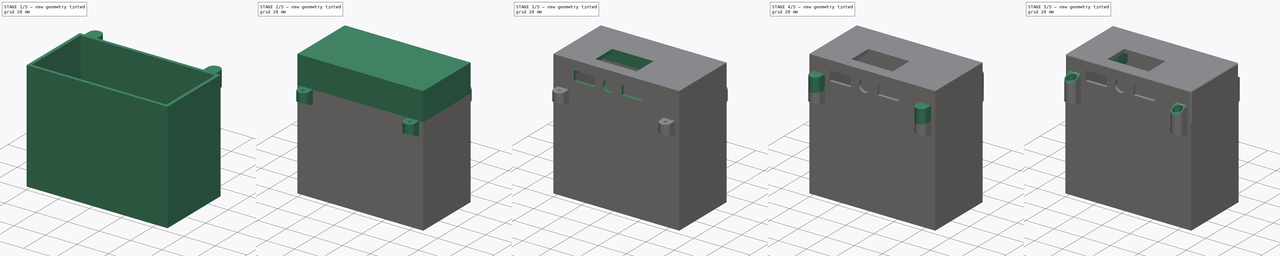
[diagram: build sequence overview — one tinted view per stage of 5, left to right]
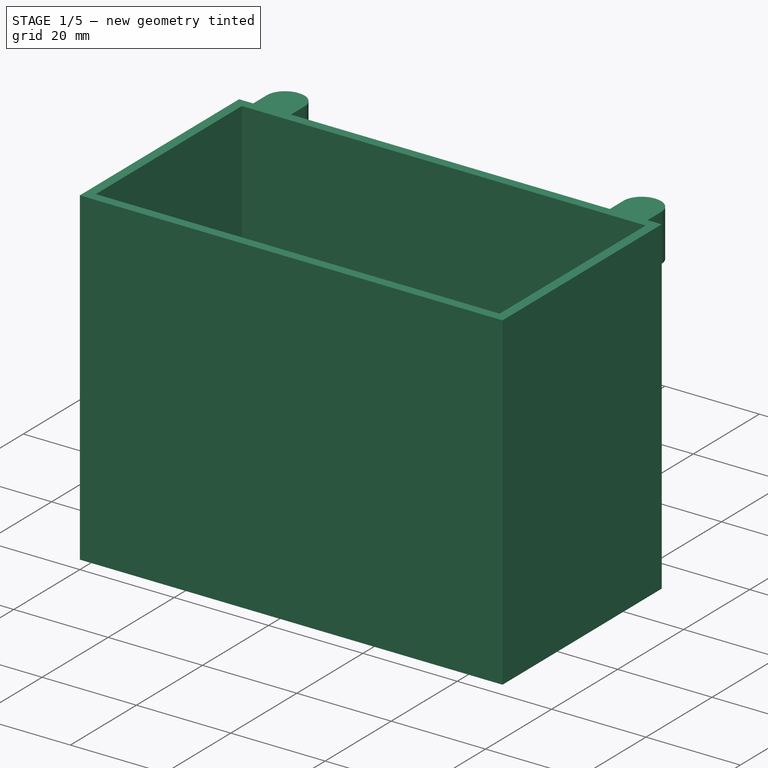
[diagram: stage 1 of 5 — iso view after this stage's code; geometry added in this stage tinted green]
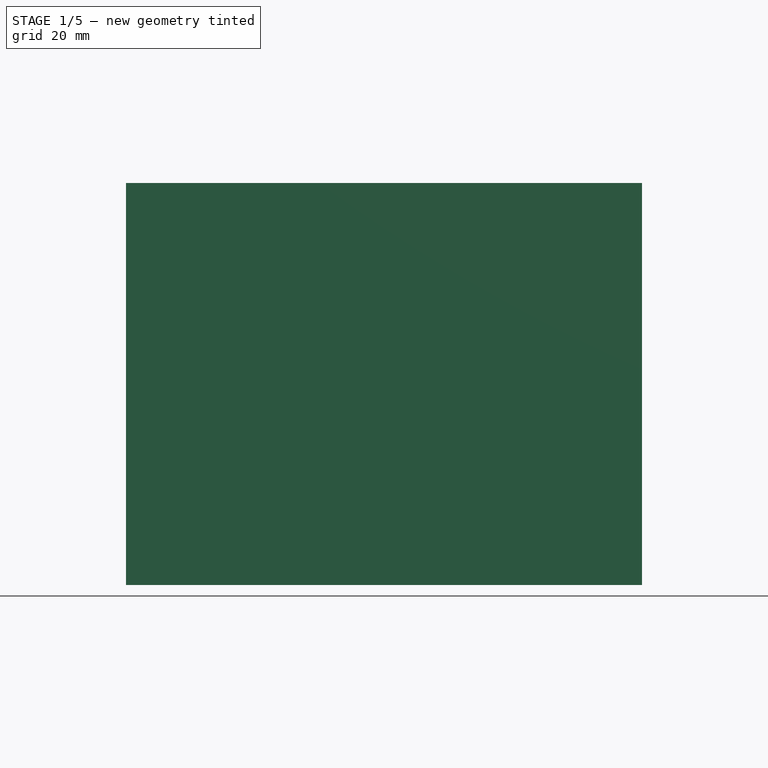
[diagram: stage 1 of 5 — front view after this stage's code; geometry added in this stage tinted green]
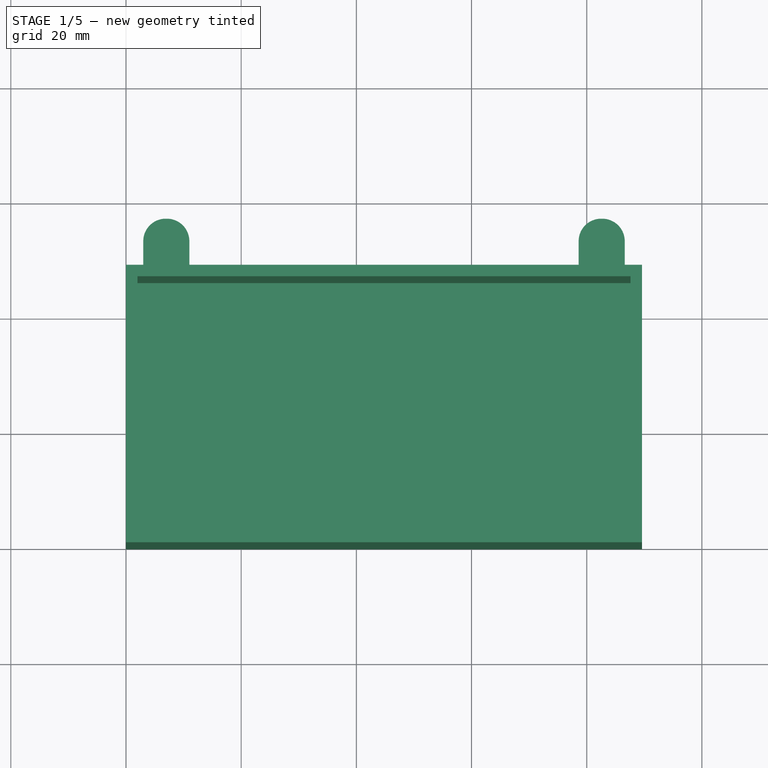
[diagram: stage 1 of 5 — top view after this stage's code; geometry added in this stage tinted green]
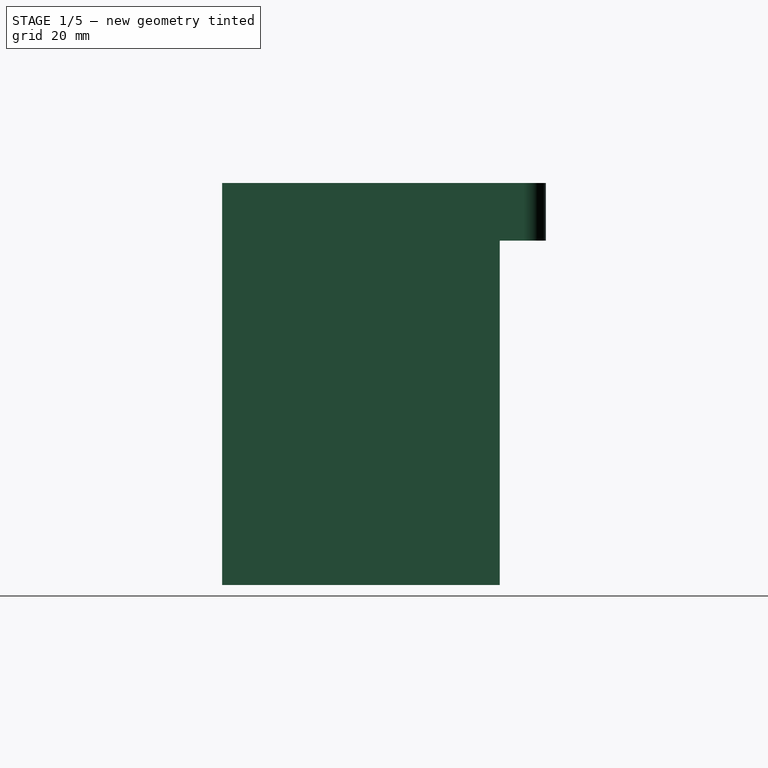
[diagram: stage 1 of 5 — right view after this stage's code; geometry added in this stage tinted green]
FCSTD DOCUMENT  (FreeCAD 0.19R24276 (Git))
Label: powerBank
License: All rights reserved
LicenseURL: http://en.wikipedia.org/wiki/All_rights_reserved
objects: Sketcher::SketchObject×19, PartDesign::Pocket×11, PartDesign::Pad×8, PartDesign::Fillet×6, PartDesign::Body×2
note: 71 computed .brp shape members not serialized (recipe doc carries the construction recipe); baked Part::Feature solids carry a one-line shape summary decoded from their .brp

FEATURE [Sketcher::SketchObject] Sketch013
  FullyConstrained = true
  MapMode = 5
  Support = -> [XY_Plane001]
  sketch-geometry (4):
    g0: LineSegment StartX=0 StartY=48.2 StartZ=0 EndX=89.6 EndY=48.2 EndZ=0
    g1: LineSegment StartX=89.6 StartY=48.2 StartZ=0 EndX=89.6 EndY=0 EndZ=0
    g2: LineSegment StartX=89.6 StartY=0 StartZ=0 EndX=0 EndY=0 EndZ=0
    g3: LineSegment StartX=0 StartY=0 StartZ=0 EndX=0 EndY=48.2 EndZ=0
  constraints (12):
    c: Coincident(g0,g1)
    c: Coincident(g1,g2)
    c: Coincident(g2,g3)
    c: Coincident(g3,g0)
    c: Horizontal(g0)
    c: Horizontal(g2)
    c: Vertical(g1)
    c: Vertical(g3)
    c: DistanceX(g2,g2) = 89.6
    c: DistanceY(g1,g1) = 48.2
    c: DistanceX(g2) = 0
    c: DistanceY(g2) = 0
FEATURE [PartDesign::Pad] Pad005
  Direction = (1,1,1)
  Length = 69.8
  Length2 = 100
  Profile = -> Sketch013
  Reversed = true
  Type = 0
  expr: Length = 67.8 + 2
FEATURE [Sketcher::SketchObject] Sketch014
  ExternalGeometry = -> [Pad005]
  FullyConstrained = true
  MapMode = 5
  Support = -> [Pad005]
  sketch-geometry (4):
    g0: LineSegment StartX=87.6 StartY=46.2 StartZ=0 EndX=2 EndY=46.2 EndZ=0
    g1: LineSegment StartX=2 StartY=46.2 StartZ=0 EndX=2 EndY=2 EndZ=0
    g2: LineSegment StartX=2 StartY=2 StartZ=0 EndX=87.6 EndY=2 EndZ=0
    g3: LineSegment StartX=87.6 StartY=2 StartZ=0 EndX=87.6 EndY=46.2 EndZ=0
  constraints (12):
    c: Coincident(g0,g1)
    c: Coincident(g1,g2)
    c: Coincident(g2,g3)
    c: Coincident(g3,g0)
    c: Horizontal(g0)
    c: Horizontal(g2)
    c: Vertical(g1)
    c: Vertical(g3)
    c: DistanceX(g-3,g0) = 2
    c: DistanceY(g0,g-3) = 2
    c: DistanceY(g-4,g1) = 2
    c: DistanceX(g2,g-5) = 2
FEATURE [PartDesign::Pocket] Pocket008
  BaseFeature = -> Pad005
  Length = 67.8
  Length2 = 100
  Profile = -> Sketch014
  Type = 0
FEATURE [Sketcher::SketchObject] Sketch025
  ExternalGeometry = -> [Pocket008]
  FullyConstrained = true
  MapMode = 5
  Placement = pos=(0,48.2,0) rot=(0,0.707107,0.707107;3.14159rad)
  Support = -> [Pocket008]
  sketch-geometry (8):
    g0: LineSegment StartX=-86.6 StartY=0 StartZ=0 EndX=-78.6 EndY=0 EndZ=0
    g1: LineSegment StartX=-78.6 StartY=0 StartZ=0 EndX=-78.6 EndY=-10 EndZ=0
    g2: LineSegment StartX=-78.6 StartY=-10 StartZ=0 EndX=-86.6 EndY=-10 EndZ=0
    g3: LineSegment StartX=-86.6 StartY=-10 StartZ=0 EndX=-86.6 EndY=0 EndZ=0
    g4: LineSegment StartX=-11 StartY=0 StartZ=0 EndX=-3 EndY=0 EndZ=0
    g5: LineSegment StartX=-3 StartY=0 StartZ=0 EndX=-3 EndY=-10 EndZ=0
    g6: LineSegment StartX=-3 StartY=-10 StartZ=0 EndX=-11 EndY=-10 EndZ=0
    g7: LineSegment StartX=-11 StartY=-10 StartZ=0 EndX=-11 EndY=0 EndZ=0
  constraints (24):
    c: Coincident(g0,g1)
    c: Coincident(g1,g2)
    c: Coincident(g2,g3)
    c: Coincident(g3,g0)
    c: Horizontal(g0)
    c: Horizontal(g2)
    c: Vertical(g1)
    c: Vertical(g3)
    c: Coincident(g4,g5)
    c: Coincident(g5,g6)
    c: Coincident(g6,g7)
    c: Coincident(g7,g4)
    c: Horizontal(g4)
    c: Horizontal(g6)
    c: Vertical(g5)
    c: Vertical(g7)
    c: DistanceX(g0,g0) = 8
    c: DistanceY(g1,g1) = 10
    c: Equal(g0,g4)
    c: Equal(g1,g7)
    c: DistanceY(g0,g-4) = 0
    c: DistanceY(g4,g-3) = 0
    c: DistanceX(g-4,g0) = 3
    c: DistanceX(g4,g-3) = 3
FEATURE [PartDesign::Pad] Pad009
  BaseFeature = -> Pocket008
  Direction = (1,1,1)
  Length = 8
  Length2 = 100
  Profile = -> Sketch025
  Type = 0
FEATURE [PartDesign::Fillet] Fillet004
  Base = -> Pad009 [Edge24,Edge28]
  BaseFeature = -> Pad009
  Radius = 3.9
  SupportTransform = false
FEATURE [PartDesign::Fillet] Fillet005
  Base = -> Fillet004 [Edge42,Edge38]
  BaseFeature = -> Fillet004
  Radius = 3.9
  SupportTransform = false
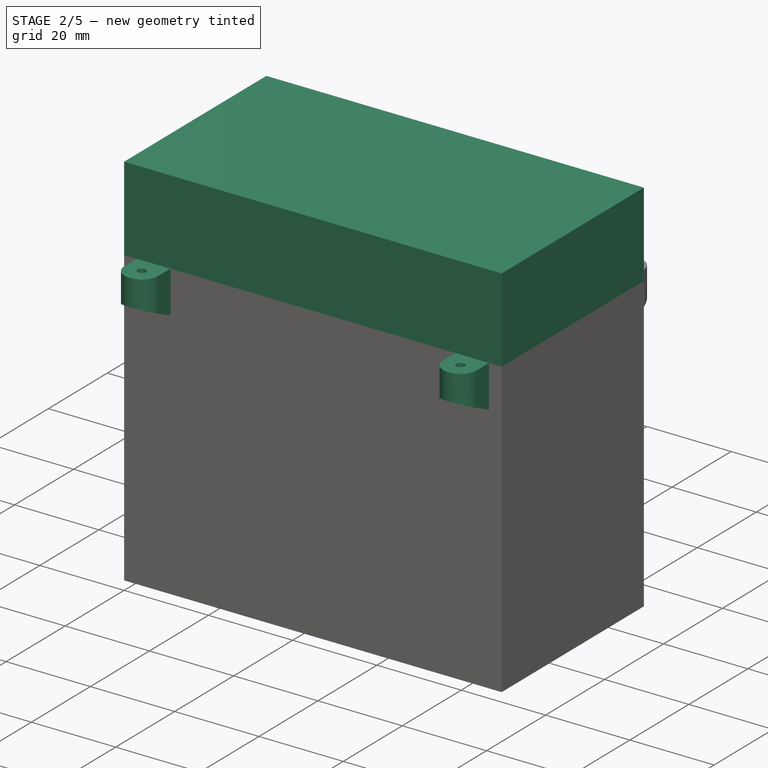
[diagram: stage 2 of 5 — iso view after this stage's code; geometry added in this stage tinted green]
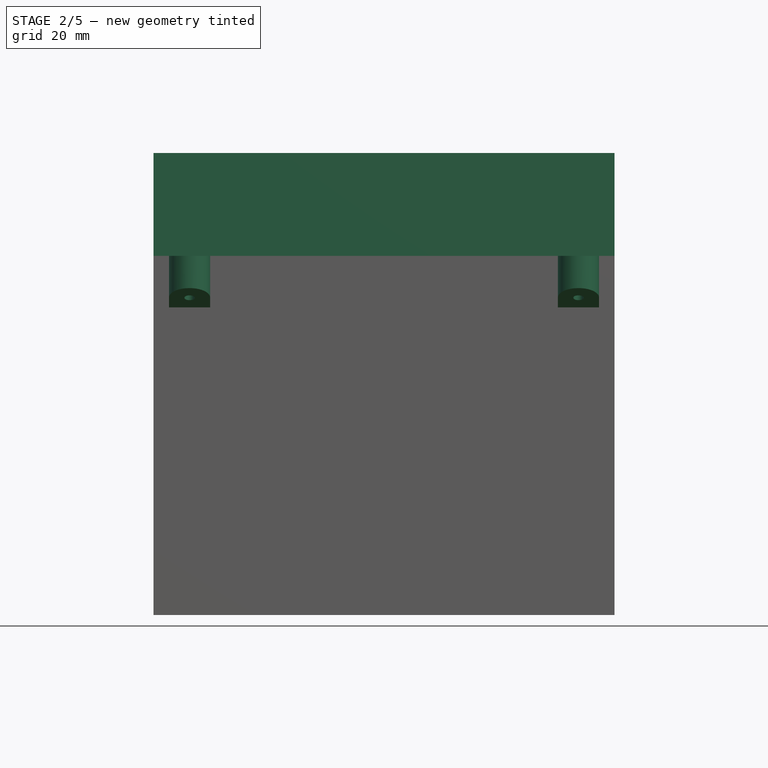
[diagram: stage 2 of 5 — front view after this stage's code; geometry added in this stage tinted green]
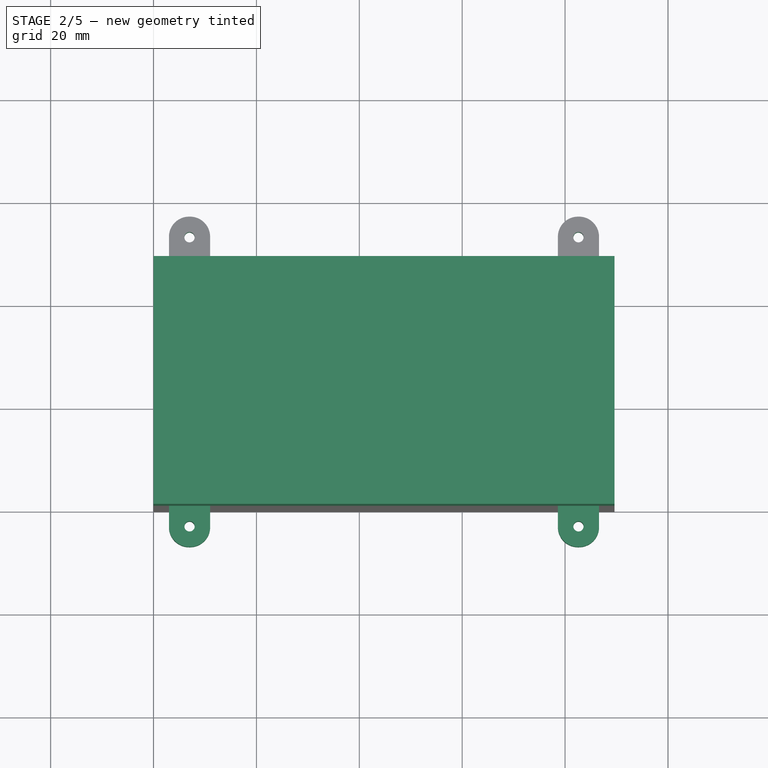
[diagram: stage 2 of 5 — top view after this stage's code; geometry added in this stage tinted green]
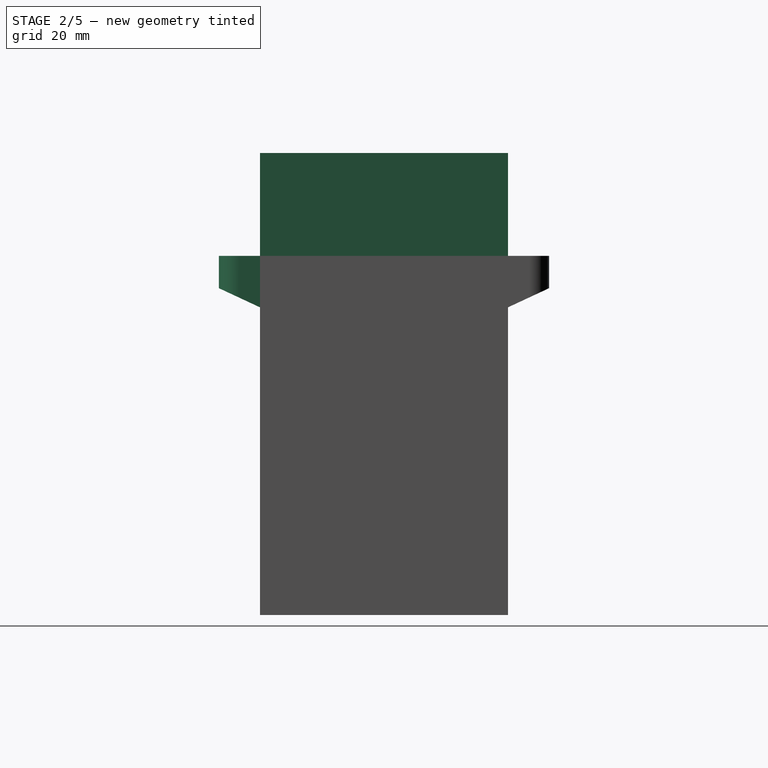
[diagram: stage 2 of 5 — right view after this stage's code; geometry added in this stage tinted green]
FEATURE [Sketcher::SketchObject] Sketch
  FullyConstrained = true
  MapMode = 5
  Support = -> [XY_Plane]
  expr: Constraints[9] = 43.4 + 2 + 2 + 0.4 + 0.4
  expr: Constraints[10] = 84.8 + 2 + 2 + 0.4 + 0.4
  sketch-geometry (4):
    g0: LineSegment StartX=0 StartY=0 StartZ=0 EndX=89.6 EndY=0 EndZ=0
    g1: LineSegment StartX=89.6 StartY=0 StartZ=0 EndX=89.6 EndY=48.2 EndZ=0
    g2: LineSegment StartX=89.6 StartY=48.2 StartZ=0 EndX=0 EndY=48.2 EndZ=0
    g3: LineSegment StartX=0 StartY=48.2 StartZ=0 EndX=0 EndY=0 EndZ=0
  constraints (11):
    c: Coincident(g0,g1)
    c: Coincident(g1,g2)
    c: Coincident(g2,g3)
    c: Coincident(g3,g0)
    c: Horizontal(g0)
    c: Horizontal(g2)
    c: Vertical(g1)
    c: Vertical(g3)
    c: Coincident(g0,g-1)
    c: DistanceY(g1,g1) = 48.2
    c: DistanceX(g2,g2) = 89.6
FEATURE [PartDesign::Pad] Pad  label="base"
  Direction = (1,1,1)
  Length = 20
  Length2 = 100
  Profile = -> Sketch
  Type = 0
FEATURE [Sketcher::SketchObject] Sketch026
  ExternalGeometry = -> [Fillet005]
  FullyConstrained = true
  MapMode = 5
  Placement = pos=(0,0,0) rot=(1,0,0;1.5708rad)
  Support = -> [Fillet005]
  sketch-geometry (8):
    g0: LineSegment StartX=3 StartY=0 StartZ=0 EndX=11 EndY=0 EndZ=0
    g1: LineSegment StartX=11 StartY=0 StartZ=0 EndX=11 EndY=-10 EndZ=0
    g2: LineSegment StartX=11 StartY=-10 StartZ=0 EndX=3 EndY=-10 EndZ=0
    g3: LineSegment StartX=3 StartY=-10 StartZ=0 EndX=3 EndY=0 EndZ=0
    g4: LineSegment StartX=78.6 StartY=0 StartZ=0 EndX=86.6 EndY=0 EndZ=0
    g5: LineSegment StartX=86.6 StartY=0 StartZ=0 EndX=86.6 EndY=-10 EndZ=0
    g6: LineSegment StartX=86.6 StartY=-10 StartZ=0 EndX=78.6 EndY=-10 EndZ=0
    g7: LineSegment StartX=78.6 StartY=-10 StartZ=0 EndX=78.6 EndY=0 EndZ=0
  constraints (24):
    c: Coincident(g0,g1)
    c: Coincident(g1,g2)
    c: Coincident(g2,g3)
    c: Coincident(g3,g0)
    c: Horizontal(g0)
    c: Horizontal(g2)
    c: Vertical(g1)
    c: Vertical(g3)
    c: Coincident(g4,g5)
    c: Coincident(g5,g6)
    c: Coincident(g6,g7)
    c: Coincident(g7,g4)
    c: Horizontal(g4)
    c: Horizontal(g6)
    c: Vertical(g5)
    c: Vertical(g7)
    c: Equal(g1,g7)
    c: Equal(g4,g0)
    c: DistanceX(g-3,g0) = 3
    c: DistanceX(g4,g-4) = 3
    c: DistanceX(g0,g0) = 8
    c: DistanceY(g1,g1) = 10
    c: DistanceY(g-3,g0) = 0
    c: DistanceY(g-4,g4) = 0
FEATURE [PartDesign::Pad] Pad010
  BaseFeature = -> Fillet005
  Direction = (1,1,1)
  Length = 8
  Length2 = 100
  Profile = -> Sketch026
  Type = 0
FEATURE [PartDesign::Fillet] Fillet006
  Base = -> Pad010 [Edge88,Edge85,Edge83,Edge80]
  BaseFeature = -> Pad010
  Radius = 3.9
  SupportTransform = false
FEATURE [Sketcher::SketchObject] Sketch027
  ExternalGeometry = -> [Fillet006]
  FullyConstrained = true
  MapMode = 5
  Support = -> [Fillet006]
  sketch-geometry (4):
    g0: Circle CenterX=7 CenterY=52.2 CenterZ=0 NormalX=0 NormalY=0 NormalZ=1 AngleXU=0 Radius=1
    g1: Circle CenterX=82.6 CenterY=52.2 CenterZ=0 NormalX=0 NormalY=0 NormalZ=1 AngleXU=0 Radius=1
    g2: Circle CenterX=7 CenterY=-4 CenterZ=0 NormalX=0 NormalY=0 NormalZ=1 AngleXU=0 Radius=1
    g3: Circle CenterX=82.6 CenterY=-4 CenterZ=0 NormalX=0 NormalY=0 NormalZ=1 AngleXU=0 Radius=1
  constraints (12):
    c: Radius(g0) = 1
    c: Equal(g0,g1)
    c: Equal(g3,g0)
    c: Equal(g0,g2)
    c: DistanceY(g-6,g1) = 4
    c: DistanceX(g1,g-6) = 4
    c: DistanceX(g-3,g0) = 4
    c: DistanceY(g-3,g0) = 4
    c: DistanceY(g2,g-4) = 4
    c: DistanceX(g-4,g2) = 4
    c: DistanceX(g-5,g3) = -4
    c: DistanceY(g3,g-5) = 4
FEATURE [PartDesign::Pocket] Pocket016
  BaseFeature = -> Fillet006
  Length = 9
  Length2 = 100
  Profile = -> Sketch027
  Type = 0
FEATURE [PartDesign::Body] Body  label="Tampa"
  Group = -> [Sketch,Pad,Sketch001,Pocket,Sketch016,Pocket010,Sketch017,Pocket011,Sketch018,Pocket012,Sketch019,Pad006,Sketch020,Pad007,Fillet,Sketch021,Pocket013,Sketch022,Pad008,Fillet002,Sketch023,Pocket014,Sketch024,Pocket015,Fillet003,Sketch028,Pad011,Sketch029,Pocket017]
  Origin = -> Origin
  Tip = -> Pocket017
FEATURE [Sketcher::SketchObject] Sketch030
  ExternalGeometry = -> [Pocket016]
  FullyConstrained = true
  MapMode = 5
  Placement = pos=(86.6,0,0) rot=(0.57735,0.57735,0.57735;2.0944rad)
  Support = -> [Pocket016]
  sketch-geometry (6):
    g0: LineSegment StartX=0 StartY=-10 StartZ=0 EndX=-10 EndY=-5.33692 EndZ=0
    g1: LineSegment StartX=-10 StartY=-5.33692 StartZ=0 EndX=-10 EndY=-10 EndZ=0
    g2: LineSegment StartX=-10 StartY=-10 StartZ=0 EndX=0 EndY=-10 EndZ=0
    g3: LineSegment StartX=48.2 StartY=-10 StartZ=0 EndX=58.2 EndY=-10 EndZ=0
    g4: LineSegment StartX=58.2 StartY=-10 StartZ=0 EndX=58.2 EndY=-5.33692 EndZ=0
    g5: LineSegment StartX=58.2 StartY=-5.33692 StartZ=0 EndX=48.2 EndY=-10 EndZ=0
  constraints (18):
    c: Coincident(g0,g1)
    c: Coincident(g1,g2)
    c: Coincident(g2,g0)
    c: Horizontal(g2)
    c: Horizontal(g3)
    c: Coincident(g3,g4)
    c: Vertical(g4)
    c: Coincident(g4,g5)
    c: Coincident(g5,g3)
    c: DistanceX(g0) = 0
    c: DistanceY(g0) = -10
    c: Vertical(g1)
    c: DistanceX(g2,g2) = 10
    c: Equal(g2,g3)
    c: DistanceX(g-3,g3) = 0
    c: DistanceY(g3,g-3) = 10
    c: Angle(g0,g2) = 0.436332
    c: Angle(g3,g5) = 0.436332
FEATURE [PartDesign::Pocket] Pocket018
  BaseFeature = -> Pocket016
  Length = 100
  Length2 = 100
  Profile = -> Sketch030
  Type = 0
FEATURE [PartDesign::Body] Body001  label="Base"
  Group = -> [Sketch013,Pad005,Sketch014,Pocket008,Sketch025,Pad009,Fillet004,Fillet005,Sketch026,Pad010,Fillet006,Sketch027,Pocket016,Sketch030,Pocket018]
  Origin = -> Origin001
  Tip = -> Pocket018
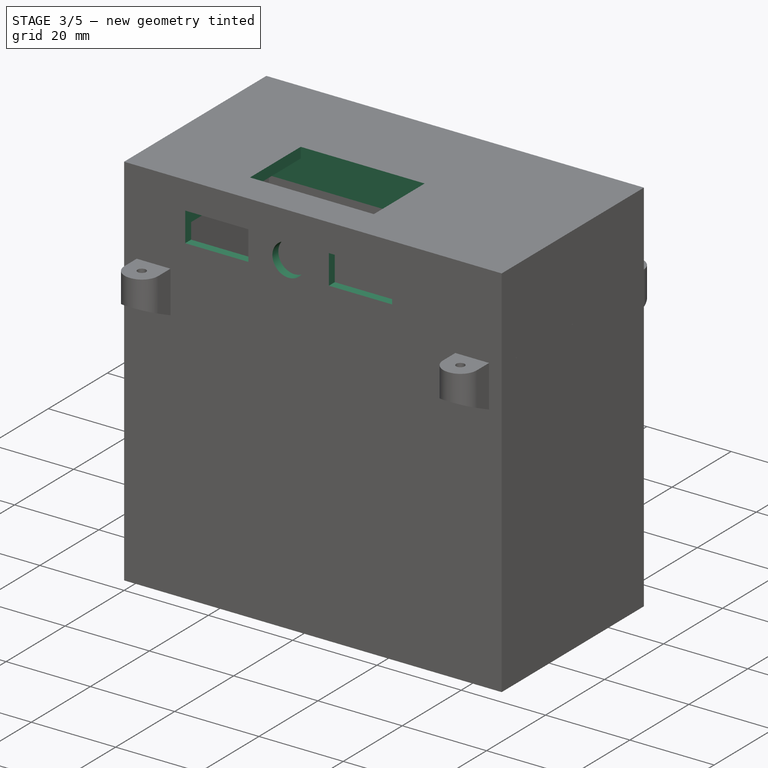
[diagram: stage 3 of 5 — iso view after this stage's code; geometry added in this stage tinted green]
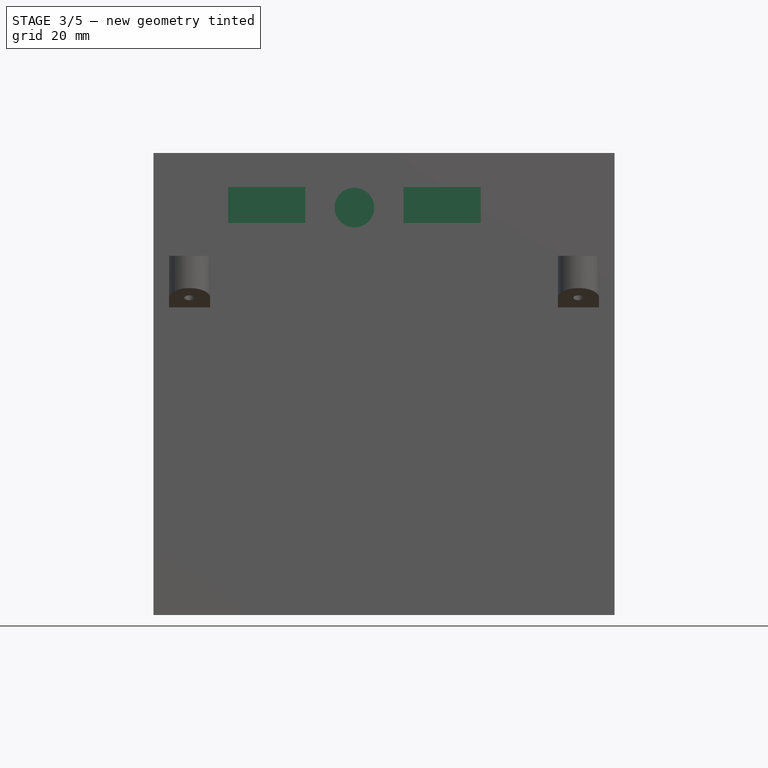
[diagram: stage 3 of 5 — front view after this stage's code; geometry added in this stage tinted green]
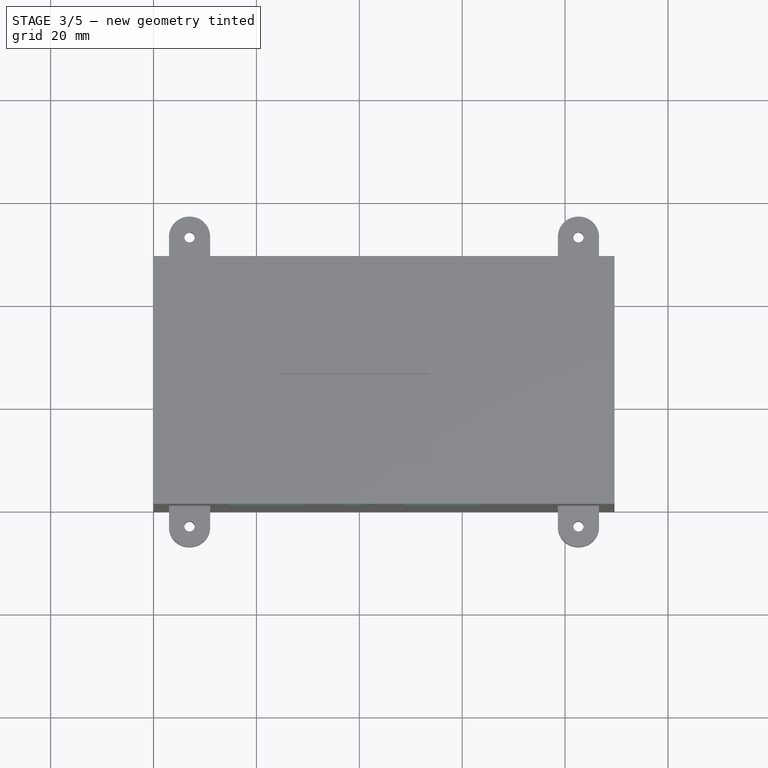
[diagram: stage 3 of 5 — top view after this stage's code; geometry added in this stage tinted green]
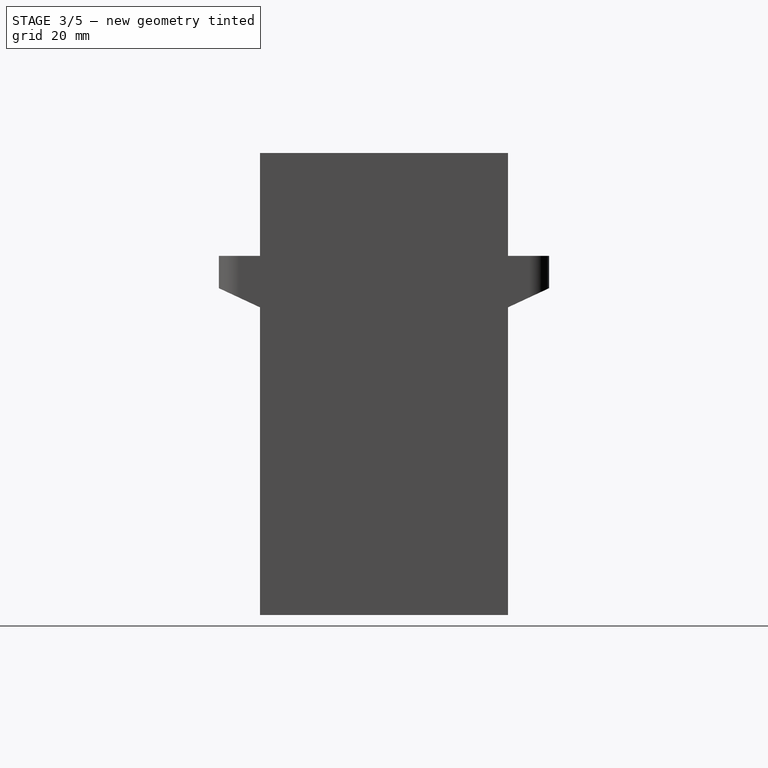
[diagram: stage 3 of 5 — right view after this stage's code; geometry added in this stage tinted green]
FEATURE [Sketcher::SketchObject] Sketch001
  ExternalGeometry = -> [Pad]
  FullyConstrained = true
  MapMode = 5
  Placement = pos=(0,0,0) rot=(1,0,0;3.14159rad)
  Support = -> [Pad]
  sketch-geometry (4):
    g0: LineSegment StartX=2 StartY=-2 StartZ=0 EndX=87.6 EndY=-2 EndZ=0
    g1: LineSegment StartX=87.6 StartY=-2 StartZ=0 EndX=87.6 EndY=-46.2 EndZ=0
    g2: LineSegment StartX=87.6 StartY=-46.2 StartZ=0 EndX=2 EndY=-46.2 EndZ=0
    g3: LineSegment StartX=2 StartY=-46.2 StartZ=0 EndX=2 EndY=-2 EndZ=0
  constraints (12):
    c: Coincident(g0,g1)
    c: Coincident(g1,g2)
    c: Coincident(g2,g3)
    c: Coincident(g3,g0)
    c: Horizontal(g0)
    c: Horizontal(g2)
    c: Vertical(g1)
    c: Vertical(g3)
    c: DistanceY(g0,g-1) = 2
    c: DistanceX(g-1,g0) = 2
    c: DistanceX(g0,g-3) = 2
    c: DistanceY(g-4,g1) = 2
FEATURE [PartDesign::Pocket] Pocket  label="afundamento principal"
  BaseFeature = -> Pad
  Length = 17.5
  Length2 = 100
  Profile = -> Sketch001
  Type = 0
  expr: Length = 20 - 2.5
FEATURE [Sketcher::SketchObject] Sketch016
  ExternalGeometry = -> [Pocket]
  FullyConstrained = false
  MapMode = 5
  Placement = pos=(0,0,0) rot=(1,0,0;1.5708rad)
  Support = -> [Pocket]
  expr: Constraints[24] = 19.1 / 2
  sketch-geometry (9):
    g0: LineSegment StartX=14.5 StartY=13.4 StartZ=0 EndX=29.5 EndY=13.4 EndZ=0
    g1: LineSegment StartX=29.5 StartY=13.4 StartZ=0 EndX=29.5 EndY=6.4 EndZ=0
    g2: LineSegment StartX=29.5 StartY=6.4 StartZ=0 EndX=14.5 EndY=6.4 EndZ=0
    g3: LineSegment StartX=14.5 StartY=6.4 StartZ=0 EndX=14.5 EndY=13.4 EndZ=0
    g4: LineSegment StartX=48.6 StartY=13.4 StartZ=0 EndX=63.6 EndY=13.4 EndZ=0
    g5: LineSegment StartX=63.6 StartY=13.4 StartZ=0 EndX=63.6 EndY=6.4 EndZ=0
    g6: LineSegment StartX=63.6 StartY=6.4 StartZ=0 EndX=48.6 EndY=6.4 EndZ=0
    g7: LineSegment StartX=48.6 StartY=6.4 StartZ=0 EndX=48.6 EndY=13.4 EndZ=0
    g8: Circle CenterX=39.05 CenterY=9.4 CenterZ=0 NormalX=0 NormalY=0 NormalZ=1 AngleXU=0 Radius=3.85306
  constraints (26):
    c: Coincident(g0,g1)
    c: Coincident(g1,g2)
    c: Coincident(g2,g3)
    c: Coincident(g3,g0)
    c: Horizontal(g0)
    c: Horizontal(g2)
    c: Vertical(g1)
    c: Vertical(g3)
    c: Coincident(g4,g5)
    c: Coincident(g5,g6)
    c: Coincident(g6,g7)
    c: Coincident(g7,g4)
    c: Horizontal(g4)
    c: Horizontal(g6)
    c: Vertical(g5)
    c: Vertical(g7)
    c: DistanceY(g3,g3) = 7
    c: DistanceX(g0,g0) = 15
    c: Equal(g0,g4)
    c: Equal(g3,g7)
    c: DistanceY(g0,g-3) = 6.6
    c: DistanceY(g4,g-3) = 6.6
    c: DistanceX(g-4,g0) = 12.5
    c: DistanceX(g1,g6) = 19.1
    c: DistanceX(g1,g8) = 9.55
    c: DistanceY(g0,g8) = -4
FEATURE [PartDesign::Pocket] Pocket010  label="Output e led"
  BaseFeature = -> Pocket
  Length = 5
  Length2 = 100
  Profile = -> Sketch016
  Type = 0
FEATURE [Sketcher::SketchObject] Sketch017
  ExternalGeometry = -> [Pocket010]
  FullyConstrained = true
  MapMode = 5
  Placement = pos=(0,0,0) rot=(0.57735,-0.57735,-0.57735;2.0944rad)
  Support = -> [Pocket010]
  expr: Constraints[11] = 13 - 0.5
  expr: Constraints[9] = 8 + 1
  expr: Constraints[10] = 6.6 - 0.5
  expr: Constraints[8] = 3 + 1
  sketch-geometry (4):
    g0: LineSegment StartX=-23.5 StartY=9.9 StartZ=0 EndX=-14.5 EndY=9.9 EndZ=0
    g1: LineSegment StartX=-14.5 StartY=9.9 StartZ=0 EndX=-14.5 EndY=13.9 EndZ=0
    g2: LineSegment StartX=-14.5 StartY=13.9 StartZ=0 EndX=-23.5 EndY=13.9 EndZ=0
    g3: LineSegment StartX=-23.5 StartY=13.9 StartZ=0 EndX=-23.5 EndY=9.9 EndZ=0
  constraints (12):
    c: Coincident(g0,g1)
    c: Coincident(g1,g2)
    c: Coincident(g2,g3)
    c: Coincident(g3,g0)
    c: Horizontal(g0)
    c: Horizontal(g2)
    c: Vertical(g1)
    c: Vertical(g3)
    c: DistanceY(g3,g3) = 4
    c: DistanceX(g2,g2) = 9
    c: DistanceY(g1,g-3) = 6.1
    c: DistanceX(g1,g-4) = 12.5
FEATURE [PartDesign::Pocket] Pocket011  label="power in"
  BaseFeature = -> Pocket010
  Length = 5
  Length2 = 100
  Profile = -> Sketch017
  Type = 0
FEATURE [Sketcher::SketchObject] Sketch018
  FullyConstrained = true
  MapMode = 5
  Placement = pos=(0,0,20) rot=(0,0,1;0rad)
  Support = -> [Pocket011]
  expr: Constraints[8] = 22.7 - 0.5 + 2
  expr: Constraints[9] = 5.6 + 0.5 + 2
  expr: Constraints[11] = 16.2 + 1
  expr: Constraints[10] = 28.4 + 1
  sketch-geometry (4):
    g0: LineSegment StartX=24.2 StartY=25.3 StartZ=0 EndX=53.6 EndY=25.3 EndZ=0
    g1: LineSegment StartX=53.6 StartY=25.3 StartZ=0 EndX=53.6 EndY=8.1 EndZ=0
    g2: LineSegment StartX=53.6 StartY=8.1 StartZ=0 EndX=24.2 EndY=8.1 EndZ=0
    g3: LineSegment StartX=24.2 StartY=8.1 StartZ=0 EndX=24.2 EndY=25.3 EndZ=0
  constraints (12):
    c: Coincident(g0,g1)
    c: Coincident(g1,g2)
    c: Coincident(g2,g3)
    c: Coincident(g3,g0)
    c: Horizontal(g0)
    c: Horizontal(g2)
    c: Vertical(g1)
    c: Vertical(g3)
    c: DistanceX(g-1,g2) = 24.2
    c: DistanceY(g-1,g2) = 8.1
    c: DistanceX(g0,g0) = 29.4
    c: DistanceY(g1,g1) = 17.2
FEATURE [PartDesign::Pocket] Pocket012  label="display"
  BaseFeature = -> Pocket011
  Length = 5
  Length2 = 100
  Profile = -> Sketch018
  Type = 0
FEATURE [Sketcher::SketchObject] Sketch019
  ExternalGeometry = -> [Pocket012]
  FullyConstrained = true
  MapMode = 5
  Placement = pos=(0,0,17.5) rot=(1,0,0;3.14159rad)
  Support = -> [Pocket012]
  sketch-geometry (4):
    g0: Circle CenterX=6.3 CenterY=-6 CenterZ=0 NormalX=0 NormalY=0 NormalZ=1 AngleXU=0 Radius=2
    g1: Circle CenterX=66 CenterY=-23.1 CenterZ=0 NormalX=0 NormalY=0 NormalZ=1 AngleXU=0 Radius=2
    g2: Circle CenterX=6.3 CenterY=-6 CenterZ=0 NormalX=0 NormalY=0 NormalZ=1 AngleXU=0 Radius=0.7
    g3: Circle CenterX=66 CenterY=-23.1 CenterZ=0 NormalX=0 NormalY=0 NormalZ=1 AngleXU=0 Radius=0.7
  constraints (10):
    c: Radius(g0) = 2
    c: Radius(g1) = 2
    c: DistanceY(g0,g-3) = 4
    c: DistanceX(g-3,g0) = 4.3
    c: DistanceX(g-3,g1) = 64
    c: DistanceY(g1,g-3) = 21.1
    c: Coincident(g2,g0)
    c: Radius(g2) = 0.7
    c: Coincident(g3,g1)
    c: Radius(g3) = 0.7
FEATURE [PartDesign::Pad] Pad006  label="parafusos"
  BaseFeature = -> Pocket012
  Direction = (1,1,1)
  Length = 3
  Length2 = 100
  Profile = -> Sketch019
  Type = 0
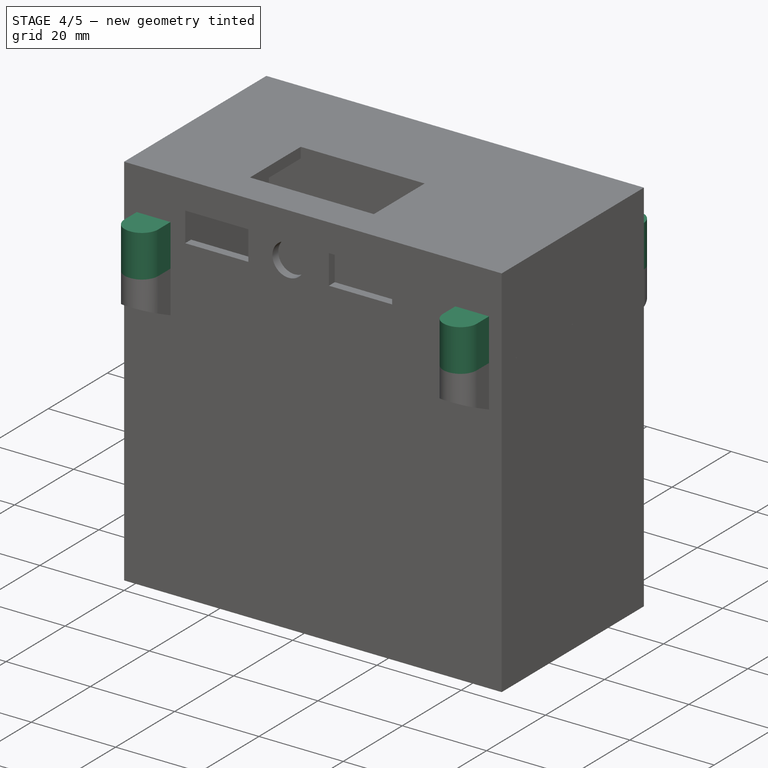
[diagram: stage 4 of 5 — iso view after this stage's code; geometry added in this stage tinted green]
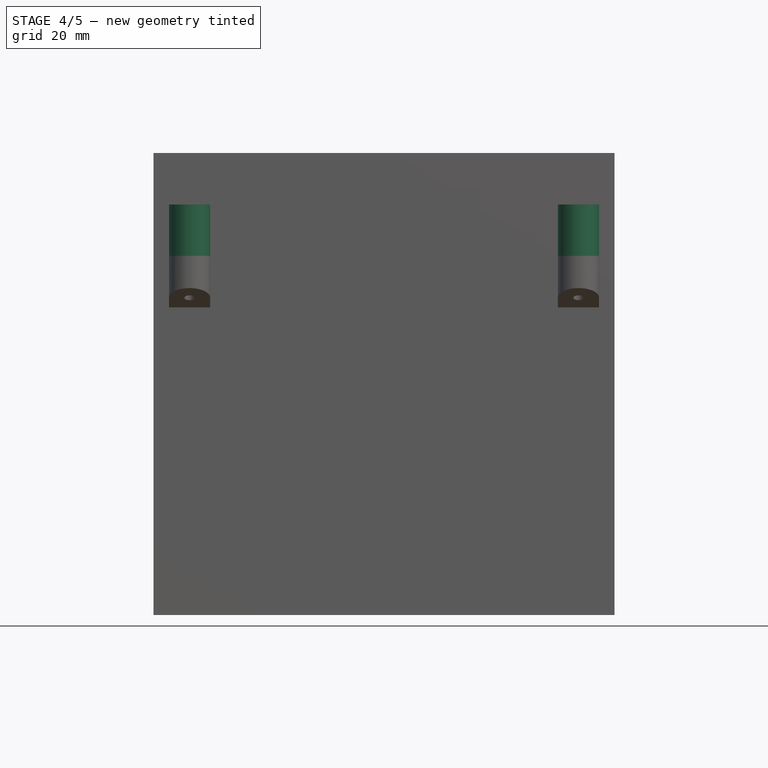
[diagram: stage 4 of 5 — front view after this stage's code; geometry added in this stage tinted green]
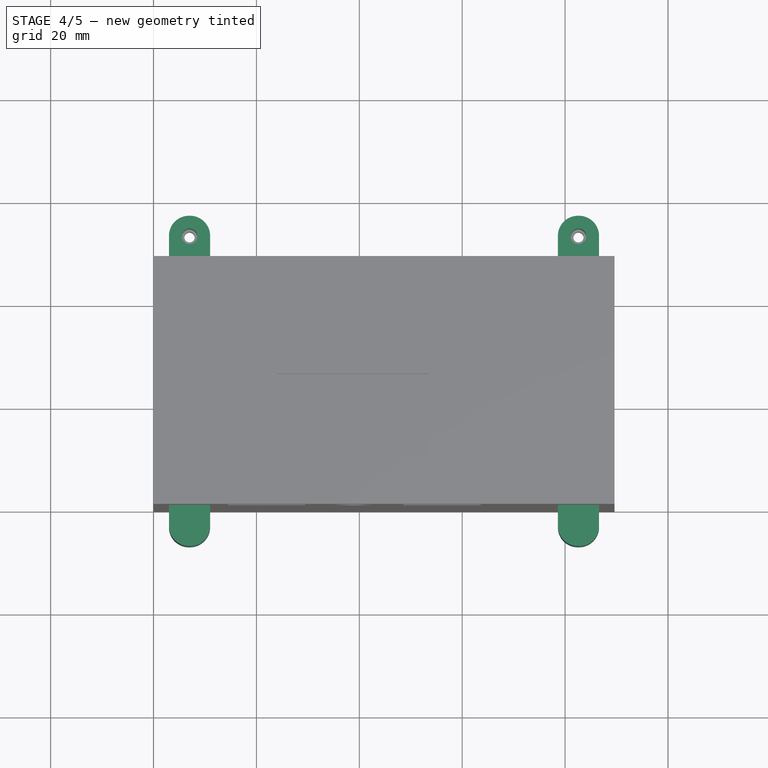
[diagram: stage 4 of 5 — top view after this stage's code; geometry added in this stage tinted green]
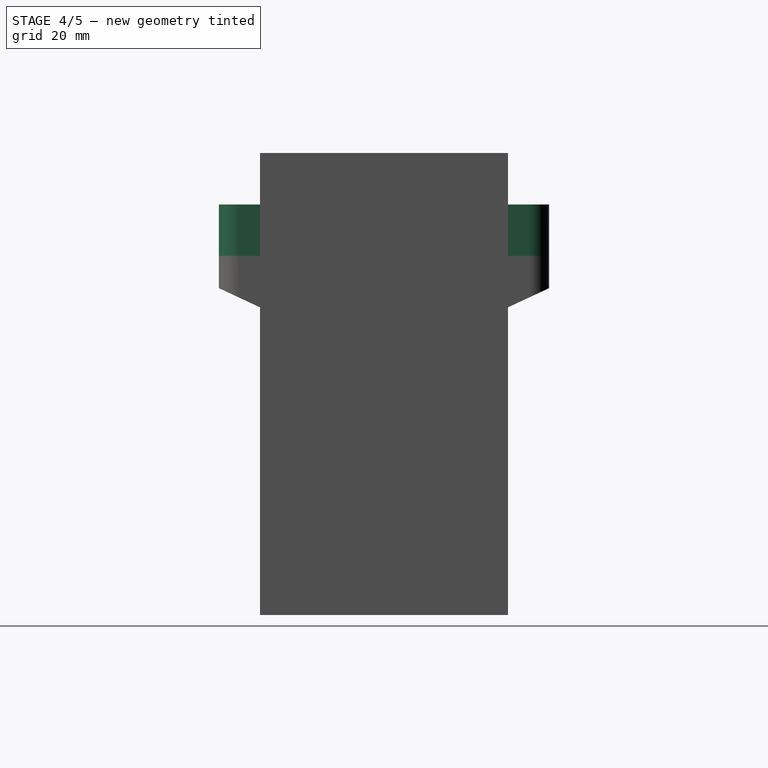
[diagram: stage 4 of 5 — right view after this stage's code; geometry added in this stage tinted green]
FEATURE [Sketcher::SketchObject] Sketch020
  ExternalGeometry = -> [Pad006]
  FullyConstrained = true
  MapMode = 5
  Placement = pos=(0,48.2,0) rot=(0,0.707107,0.707107;3.14159rad)
  Support = -> [Pad006]
  sketch-geometry (8):
    g0: LineSegment StartX=-11 StartY=10 StartZ=0 EndX=-3 EndY=10 EndZ=0
    g1: LineSegment StartX=-3 StartY=10 StartZ=0 EndX=-3 EndY=0 EndZ=0
    g2: LineSegment StartX=-3 StartY=0 StartZ=0 EndX=-11 EndY=0 EndZ=0
    g3: LineSegment StartX=-11 StartY=0 StartZ=0 EndX=-11 EndY=10 EndZ=0
    g4: LineSegment StartX=-86.6 StartY=10 StartZ=0 EndX=-78.6 EndY=10 EndZ=0
    g5: LineSegment StartX=-78.6 StartY=10 StartZ=0 EndX=-78.6 EndY=0 EndZ=0
    g6: LineSegment StartX=-78.6 StartY=0 StartZ=0 EndX=-86.6 EndY=0 EndZ=0
    g7: LineSegment StartX=-86.6 StartY=0 StartZ=0 EndX=-86.6 EndY=10 EndZ=0
  constraints (24):
    c: Coincident(g0,g1)
    c: Coincident(g1,g2)
    c: Coincident(g2,g3)
    c: Coincident(g3,g0)
    c: Horizontal(g0)
    c: Horizontal(g2)
    c: Vertical(g1)
    c: Vertical(g3)
    c: DistanceX(g0,g0) = 8
    c: DistanceY(g1,g1) = 10
    c: DistanceY(g-1,g1) = 0
    c: DistanceX(g1,g-1) = 3
    c: Coincident(g4,g5)
    c: Coincident(g5,g6)
    c: Coincident(g6,g7)
    c: Coincident(g7,g4)
    c: Horizontal(g4)
    c: Horizontal(g6)
    c: Vertical(g5)
    c: Vertical(g7)
    c: Equal(g5,g3)
    c: Equal(g6,g2)
    c: DistanceY(g-1,g5) = 0
    c: DistanceX(g-3,g6) = 3
FEATURE [PartDesign::Pad] Pad007  label="suporte da base 1"
  BaseFeature = -> Pad006
  Direction = (1,1,1)
  Length = 8
  Length2 = 100
  Profile = -> Sketch020
  Type = 0
FEATURE [PartDesign::Fillet] Fillet
  Base = -> Pad007 [Edge93,Edge96,Edge98,Edge101]
  BaseFeature = -> Pad007
  Radius = 3.9
  SupportTransform = false
FEATURE [Sketcher::SketchObject] Sketch021
  ExternalGeometry = -> [Fillet]
  FullyConstrained = true
  MapMode = 5
  Placement = pos=(0,0,1.07e-14) rot=(1,0,0;3.14159rad)
  Support = -> [Fillet]
  sketch-geometry (2):
    g0: Circle CenterX=7 CenterY=-52.2 CenterZ=0 NormalX=0 NormalY=0 NormalZ=1 AngleXU=0 Radius=1.5
    g1: Circle CenterX=82.6 CenterY=-52.2 CenterZ=0 NormalX=0 NormalY=0 NormalZ=1 AngleXU=0 Radius=1.5
  constraints (6):
    c: Radius(g0) = 1.5
    c: Radius(g1) = 1.5
    c: DistanceX(g-3,g0) = 4
    c: DistanceX(g-4,g1) = 4
    c: DistanceY(g0,g-3) = 4
    c: DistanceY(g1,g-4) = 4
FEATURE [PartDesign::Pocket] Pocket013  label="burado do corpo do parafuso"
  BaseFeature = -> Fillet
  Length = 20
  Length2 = 100
  Profile = -> Sketch021
  Type = 0
FEATURE [Sketcher::SketchObject] Sketch022
  ExternalGeometry = -> [Pocket013]
  FullyConstrained = true
  MapMode = 5
  Placement = pos=(0,0,0) rot=(1,0,0;1.5708rad)
  Support = -> [Pocket013]
  sketch-geometry (8):
    g0: LineSegment StartX=3 StartY=10 StartZ=0 EndX=11 EndY=10 EndZ=0
    g1: LineSegment StartX=11 StartY=10 StartZ=0 EndX=11 EndY=0 EndZ=0
    g2: LineSegment StartX=11 StartY=0 StartZ=0 EndX=3 EndY=0 EndZ=0
    g3: LineSegment StartX=3 StartY=0 StartZ=0 EndX=3 EndY=10 EndZ=0
    g4: LineSegment StartX=78.6 StartY=10 StartZ=0 EndX=86.6 EndY=10 EndZ=0
    g5: LineSegment StartX=86.6 StartY=10 StartZ=0 EndX=86.6 EndY=0 EndZ=0
    g6: LineSegment StartX=86.6 StartY=0 StartZ=0 EndX=78.6 EndY=0 EndZ=0
    g7: LineSegment StartX=78.6 StartY=0 StartZ=0 EndX=78.6 EndY=10 EndZ=0
  constraints (24):
    c: Coincident(g0,g1)
    c: Coincident(g1,g2)
    c: Coincident(g2,g3)
    c: Coincident(g3,g0)
    c: Horizontal(g0)
    c: Horizontal(g2)
    c: Vertical(g1)
    c: Vertical(g3)
    c: Coincident(g4,g5)
    c: Coincident(g5,g6)
    c: Coincident(g6,g7)
    c: Coincident(g7,g4)
    c: Horizontal(g4)
    c: Horizontal(g6)
    c: Vertical(g5)
    c: Vertical(g7)
    c: DistanceX(g0,g0) = 8
    c: DistanceY(g1,g1) = 10
    c: Equal(g1,g7)
    c: Equal(g6,g2)
    c: DistanceY(g-1,g2) = 0
    c: DistanceY(g-1,g6) = 0
    c: DistanceX(g-1,g2) = 3
    c: DistanceX(g5,g-3) = 3
FEATURE [PartDesign::Pad] Pad008  label="suporte da base 2"
  BaseFeature = -> Pocket013
  Direction = (1,1,1)
  Length = 8
  Length2 = 100
  Profile = -> Sketch022
  Type = 0
FEATURE [PartDesign::Fillet] Fillet002
  Base = -> Pad008 [Edge116,Edge113,Edge118,Edge121]
  BaseFeature = -> Pad008
  Radius = 3.9
  SupportTransform = false
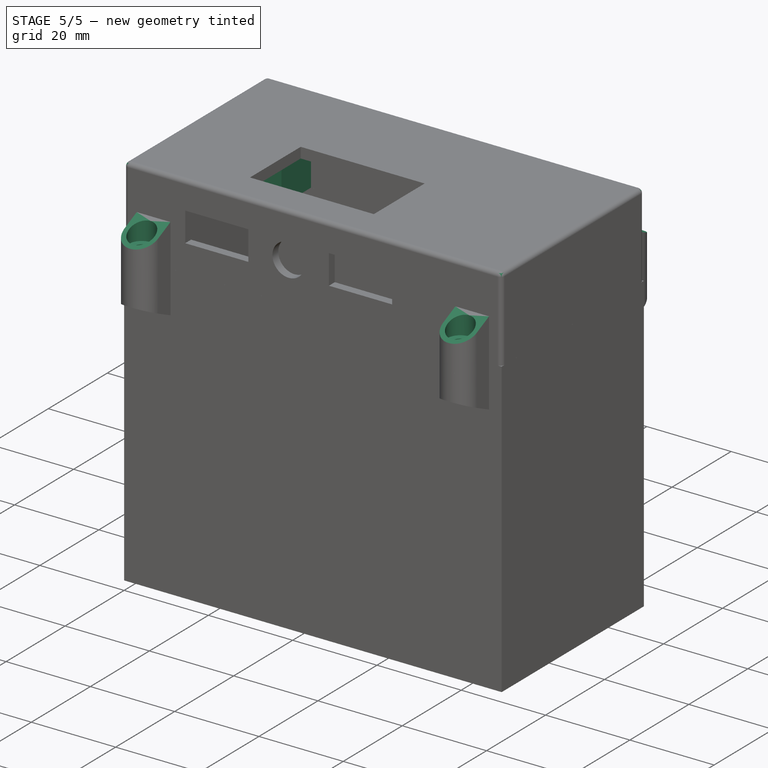
[diagram: stage 5 of 5 — iso view after this stage's code; geometry added in this stage tinted green]
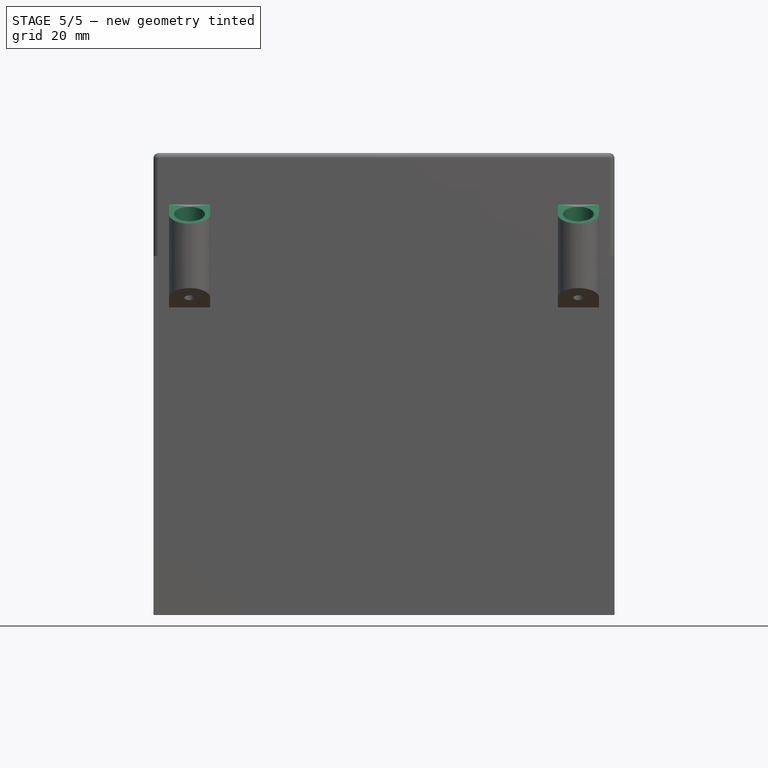
[diagram: stage 5 of 5 — front view after this stage's code; geometry added in this stage tinted green]
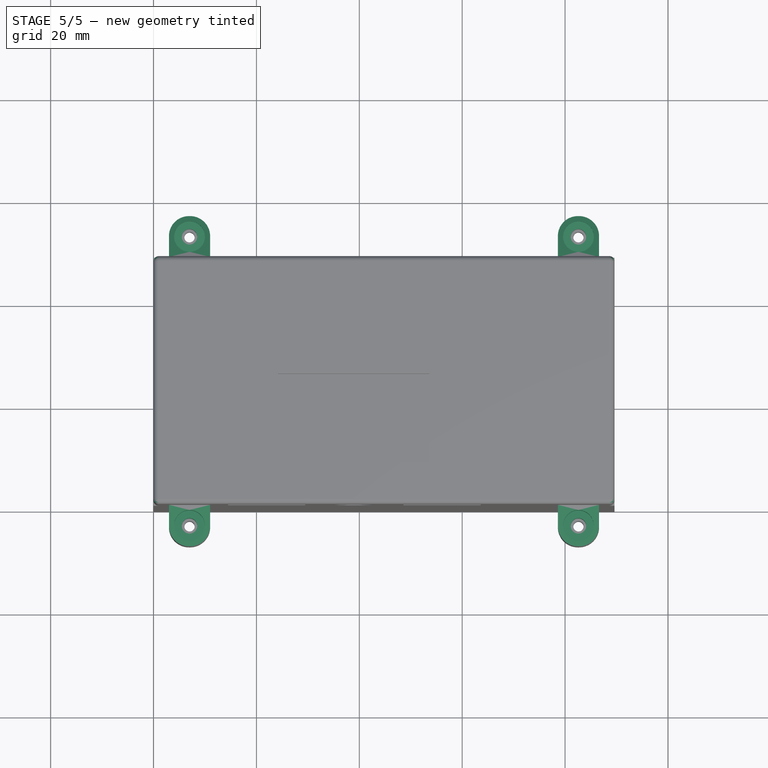
[diagram: stage 5 of 5 — top view after this stage's code; geometry added in this stage tinted green]
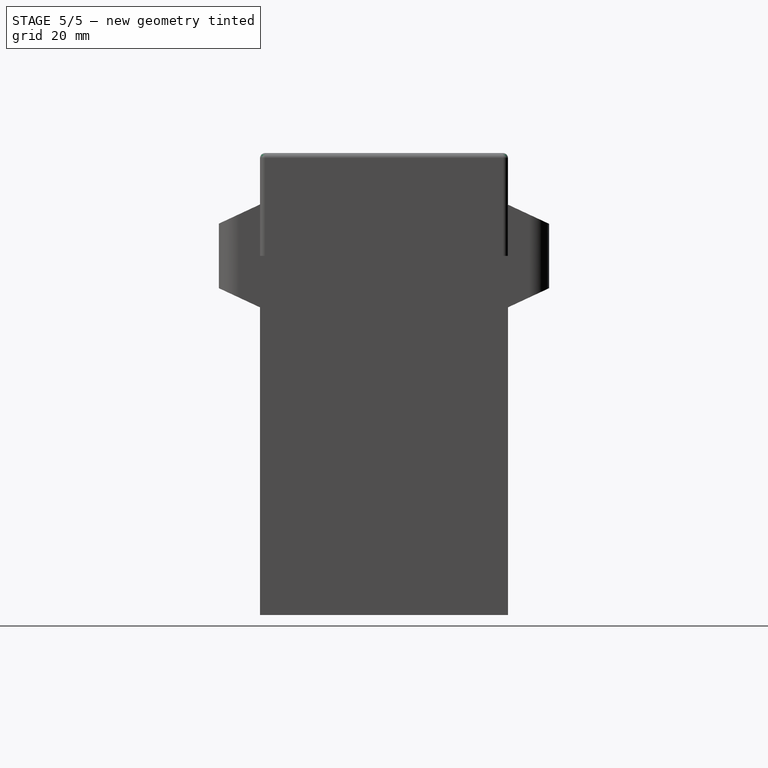
[diagram: stage 5 of 5 — right view after this stage's code; geometry added in this stage tinted green]
FEATURE [Sketcher::SketchObject] Sketch023
  ExternalGeometry = -> [Fillet002]
  FullyConstrained = true
  MapMode = 5
  Placement = pos=(0,0,0) rot=(1,0,0;3.14159rad)
  Support = -> [Fillet002]
  sketch-geometry (2):
    g0: Circle CenterX=7 CenterY=4 CenterZ=0 NormalX=0 NormalY=0 NormalZ=1 AngleXU=0 Radius=1.5
    g1: Circle CenterX=82.6 CenterY=4 CenterZ=0 NormalX=0 NormalY=0 NormalZ=1 AngleXU=0 Radius=1.5
  constraints (6):
    c: Radius(g0) = 1.5
    c: Radius(g1) = 1.5
    c: DistanceX(g-3,g0) = 4
    c: DistanceY(g-3,g0) = 4
    c: DistanceY(g-4,g1) = 4
    c: DistanceX(g1,g-4) = 4
FEATURE [PartDesign::Pocket] Pocket014  label="buraco do corpo do parafuso 2"
  BaseFeature = -> Fillet002
  Length = 20
  Length2 = 100
  Profile = -> Sketch023
  Type = 0
FEATURE [Sketcher::SketchObject] Sketch024
  AttachmentOffset = pos=(0,0,10) rot=(0,0,1;0rad)
  ExternalGeometry = -> [Pocket014]
  FullyConstrained = true
  MapMode = 5
  Placement = pos=(0,0,10) rot=(0,0,1;0rad)
  Support = -> [XY_Plane]
  sketch-geometry (4):
    g0: Circle CenterX=7 CenterY=52.2 CenterZ=0 NormalX=0 NormalY=0 NormalZ=1 AngleXU=0 Radius=3
    g1: Circle CenterX=82.6 CenterY=52.2 CenterZ=0 NormalX=0 NormalY=0 NormalZ=1 AngleXU=0 Radius=3
    g2: Circle CenterX=82.6 CenterY=-4 CenterZ=0 NormalX=0 NormalY=0 NormalZ=1 AngleXU=0 Radius=3
    g3: Circle CenterX=7 CenterY=-4 CenterZ=0 NormalX=0 NormalY=0 NormalZ=1 AngleXU=0 Radius=3
  constraints (12):
    c: Radius(g3) = 3
    c: Radius(g2) = 3
    c: Radius(g1) = 3
    c: Radius(g0) = 3
    c: DistanceY(g-6,g0) = 0
    c: DistanceX(g0,g-6) = 1.5
    c: DistanceX(g3,g-3) = 1.5
    c: DistanceY(g-3,g3) = 0
    c: DistanceY(g2,g-4) = 0
    c: DistanceX(g2,g-4) = 1.5
    c: DistanceX(g1,g-5) = 1.5
    c: DistanceY(g-5,g1) = 0
FEATURE [PartDesign::Pocket] Pocket015  label="uraco da cabeca dos parafusosos"
  BaseFeature = -> Pocket014
  Length = 5
  Length2 = 100
  Profile = -> Sketch024
  Type = 0
FEATURE [PartDesign::Fillet] Fillet003
  Base = -> Pocket015 [Edge42,Edge60,Edge73,Edge66,Edge65,Edge41,Edge43,Edge59]
  BaseFeature = -> Pocket015
  Radius = 1
  SupportTransform = false
FEATURE [Sketcher::SketchObject] Sketch028
  ExternalGeometry = -> [Fillet003]
  FullyConstrained = true
  MapMode = 5
  Placement = pos=(0,0,17.5) rot=(1,0,0;3.14159rad)
  Support = -> [Fillet003]
  sketch-geometry (12):
    g0: LineSegment StartX=2 StartY=-36.2 StartZ=0 EndX=12 EndY=-36.2 EndZ=0
    g1: LineSegment StartX=12 StartY=-36.2 StartZ=0 EndX=12 EndY=-46.2 EndZ=0
    g2: LineSegment StartX=12 StartY=-46.2 StartZ=0 EndX=2 EndY=-46.2 EndZ=0
    g3: LineSegment StartX=2 StartY=-46.2 StartZ=0 EndX=2 EndY=-36.2 EndZ=0
    g4: LineSegment StartX=77.6 StartY=-36.2 StartZ=0 EndX=87.6 EndY=-36.2 EndZ=0
    g5: LineSegment StartX=87.6 StartY=-36.2 StartZ=0 EndX=87.6 EndY=-46.2 EndZ=0
    g6: LineSegment StartX=87.6 StartY=-46.2 StartZ=0 EndX=77.6 EndY=-46.2 EndZ=0
    g7: LineSegment StartX=77.6 StartY=-46.2 StartZ=0 EndX=77.6 EndY=-36.2 EndZ=0
    g8: LineSegment StartX=77.6 StartY=-2 StartZ=0 EndX=87.6 EndY=-2 EndZ=0
    g9: LineSegment StartX=87.6 StartY=-2 StartZ=0 EndX=87.6 EndY=-12 EndZ=0
    g10: LineSegment StartX=87.6 StartY=-12 StartZ=0 EndX=77.6 EndY=-12 EndZ=0
    g11: LineSegment StartX=77.6 StartY=-12 StartZ=0 EndX=77.6 EndY=-2 EndZ=0
  constraints (33):
    c: Coincident(g0,g1)
    c: Coincident(g1,g2)
    c: Coincident(g2,g3)
    c: Coincident(g3,g0)
    c: Horizontal(g0)
    c: Horizontal(g2)
    c: Vertical(g1)
    c: Vertical(g3)
    c: DistanceX(g0,g0) = 10
    c: Equal(g0,g1)
    c: Coincident(g2,g-5)
    c: Coincident(g4,g5)
    c: Coincident(g5,g6)
    c: Coincident(g6,g7)
    c: Coincident(g7,g4)
    c: Horizontal(g4)
    c: Horizontal(g6)
    c: Vertical(g5)
    c: Vertical(g7)
    c: DistanceY(g7,g7) = 10
    c: Equal(g7,g4)
    c: Coincident(g5,g-4)
    c: Coincident(g8,g9)
    c: Coincident(g9,g10)
    c: Coincident(g10,g11)
    c: Coincident(g11,g8)
    c: Horizontal(g8)
    c: Horizontal(g10)
    c: Vertical(g9)
    c: Vertical(g11)
    c: DistanceX(g8,g8) = 10
    c: Equal(g8,g11)
    c: Coincident(g8,g-4)
FEATURE [PartDesign::Pad] Pad011  label="limitador da base"
  BaseFeature = -> Fillet003
  Direction = (1,1,1)
  Length = 17.5
  Length2 = 100
  Profile = -> Sketch028
  Type = 0
  expr: Length = 20 - 2.5
FEATURE [Sketcher::SketchObject] Sketch029
  FullyConstrained = true
  MapMode = 5
  Placement = pos=(89.6,0,0) rot=(0.57735,0.57735,0.57735;2.0944rad)
  Support = -> [Pad011]
  sketch-geometry (6):
    g0: LineSegment StartX=0 StartY=10 StartZ=0 EndX=-10 EndY=5.33692 EndZ=0
    g1: LineSegment StartX=-10 StartY=5.33692 StartZ=0 EndX=-10 EndY=10 EndZ=0
    g2: LineSegment StartX=-10 StartY=10 StartZ=0 EndX=0 EndY=10 EndZ=0
    g3: LineSegment StartX=48.1146 StartY=10 StartZ=0 EndX=58.1146 EndY=10 EndZ=0
    g4: LineSegment StartX=58.1146 StartY=10 StartZ=0 EndX=58.1146 EndY=5.33692 EndZ=0
    g5: LineSegment StartX=58.1146 StartY=5.33692 StartZ=0 EndX=48.1146 EndY=10 EndZ=0
  constraints (18):
    c: Coincident(g0,g1)
    c: Vertical(g1)
    c: Coincident(g1,g2)
    c: Coincident(g2,g0)
    c: Horizontal(g2)
    c: DistanceX(g0) = 0
    c: Horizontal(g3)
    c: Coincident(g3,g4)
    c: Vertical(g4)
    c: Coincident(g4,g5)
    c: Coincident(g5,g3)
    c: DistanceX(g3) = 48.1146
    c: DistanceY(g3) = 10
    c: DistanceX(g3,g3) = 10
    c: Angle(g5,g3) = 0.436332
    c: Equal(g2,g3)
    c: Angle(g2,g0) = 0.436332
    c: DistanceY(g0) = 10
FEATURE [PartDesign::Pocket] Pocket017
  BaseFeature = -> Pad011
  Length = 100
  Length2 = 100
  Profile = -> Sketch029
  Type = 0
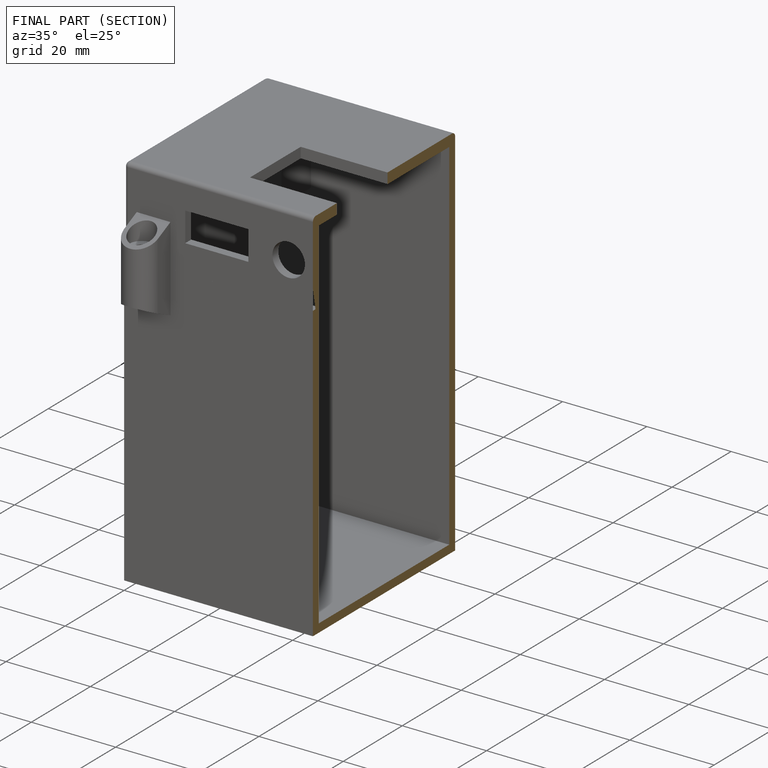
[diagram: finished part — half-section view (interior)]
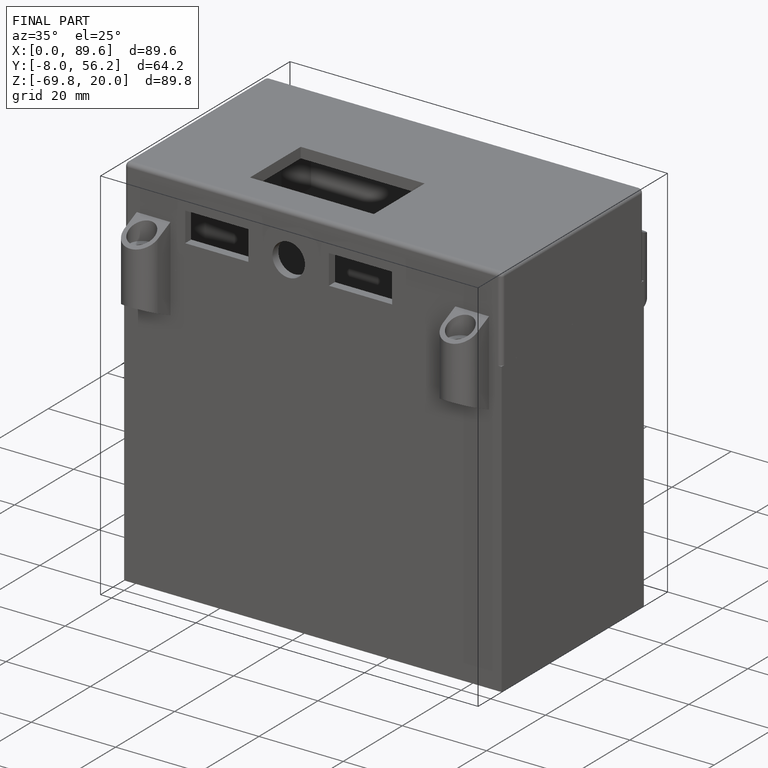
[diagram: finished part — iso view with bounding-box wireframe]
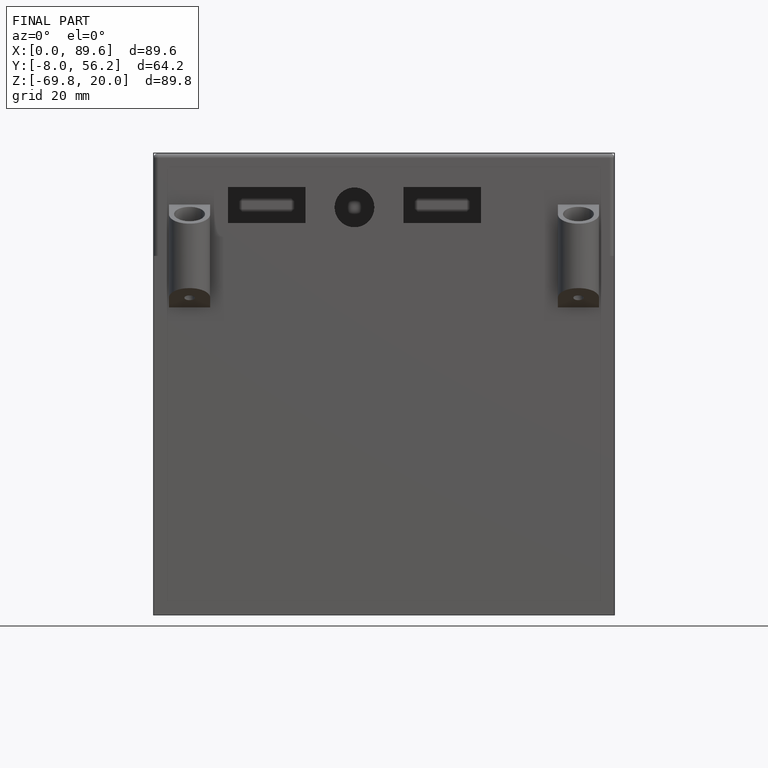
[diagram: finished part — front view with bounding-box wireframe]
